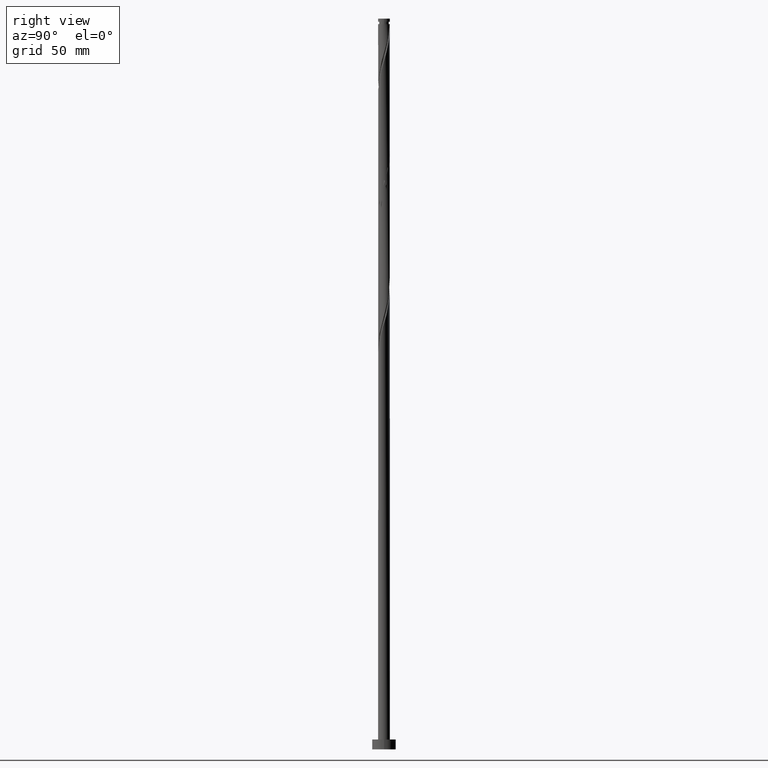
[diagram: clean part render]
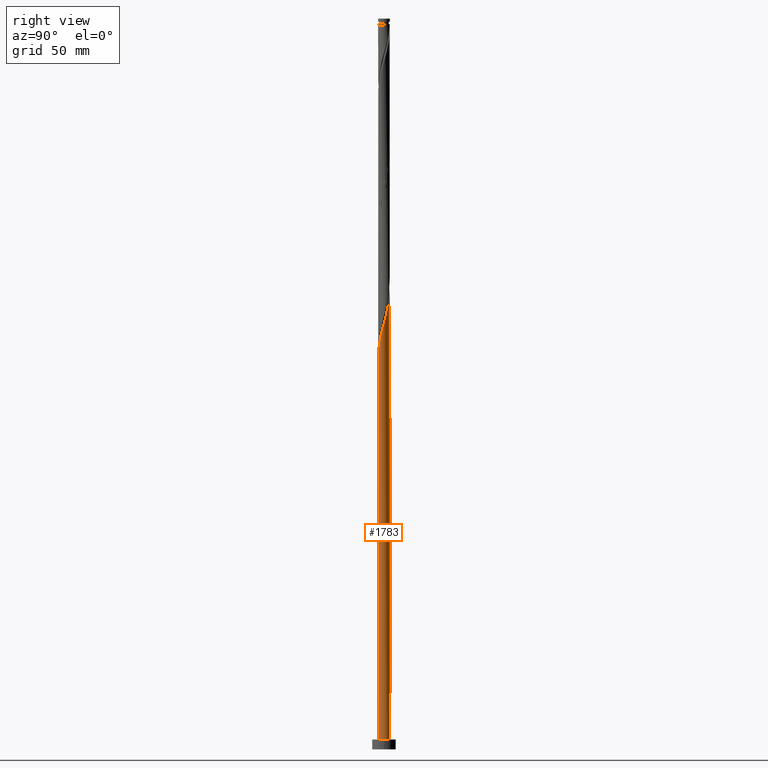
[diagram: same view with one face highlighted and labeled with its STEP entity id]
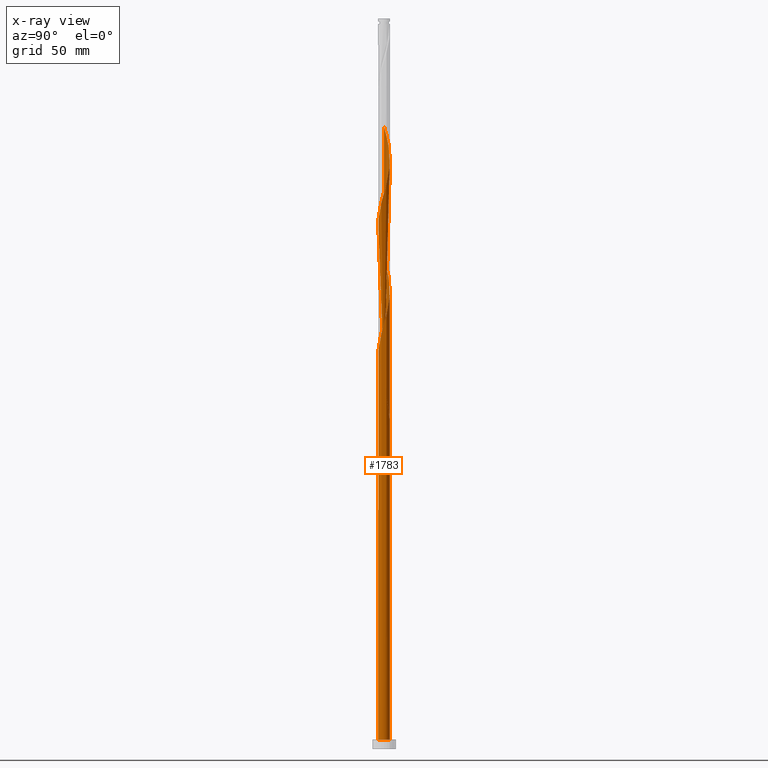
[diagram: x-ray of the same camera — body ghosted, the highlighted face saturated]
A machine part, right view. The second image highlights one B-rep face of the part: STEP entity #1783.
The next image is the same camera in x-ray: the body ghosted, the highlighted face saturated — about 0% of this face is hidden behind the body in this view.
In plain terms, the highlighted cylindrical surface (bore or boss wall) has radius 3 mm, axis along (-0, -0, -1).
Its self-contained STEP definition (entity closure, byte-faithful):
#2 = CARTESIAN_POINT ( 'NONE',  ( 2.611625341554443036, 1.476283534877588233, 287.9166993528681360 ) ) ;
#12 = CARTESIAN_POINT ( 'NONE',  ( 1.531984494871656111, 2.598546826576328961, 293.4722549084237357 ) ) ;
#20 = ORIENTED_EDGE ( 'NONE', *, *, #1636, .T. ) ;
#22 = CARTESIAN_POINT ( 'NONE',  ( 1.997955648279249319, -2.259998966802001963, 273.4722549084237926 ) ) ;
#32 = ORIENTED_EDGE ( 'NONE', *, *, #1841, .T. ) ;
#46 = CARTESIAN_POINT ( 'NONE',  ( 2.038775222402708476, 2.223244857174724309, 224.5833660195348784 ) ) ;
#54 = CARTESIAN_POINT ( 'NONE',  ( 2.611625341554443036, 1.476283534877588233, 221.2500326862015640 ) ) ;
#60 = LINE ( 'NONE', #649, #1243 ) ;
#74 = CARTESIAN_POINT ( 'NONE',  ( -1.741185482790980288, 2.443004935426444924, 172.3611437973125931 ) ) ;
#91 = CARTESIAN_POINT ( 'NONE',  ( -2.986297077045553472, -0.2864083930844384951, 250.1389215750904214 ) ) ;
#111 = CARTESIAN_POINT ( 'NONE',  ( -1.484415317302711257, 2.626010904050889216, 237.9166993528682497 ) ) ;
#123 = CARTESIAN_POINT ( 'NONE',  ( 2.744447700168710647, -1.251970017003503521, 211.2500326862014788 ) ) ;
#132 = CARTESIAN_POINT ( 'NONE',  ( -2.861491667719901599, -0.9010357570982420183, 252.3611437973126215 ) ) ;
#140 = EDGE_CURVE ( 'NONE', #1153, #1332, #876, .T. ) ;
#151 = CARTESIAN_POINT ( 'NONE',  ( 0.5969924622639753986, 2.939999999999999503, 167.9166993528682212 ) ) ;
#167 = CARTESIAN_POINT ( 'NONE',  ( 2.584311715169901991, -1.523592123514564856, 276.8055882417571070 ) ) ;
#168 = CARTESIAN_POINT ( 'NONE',  ( 3.016399812174365369, -0.02746407747455998846, 215.6944771306459643 ) ) ;
#172 = DIRECTION ( 'NONE',  ( 1.000000000000000000, 0.000000000000000000, 0.000000000000000000 ) ) ;
#175 = CARTESIAN_POINT ( 'NONE',  ( -1.785379858637181405, -2.410895841875526191, 259.0278104639792787 ) ) ;
#183 = EDGE_CURVE ( 'NONE', #1778, #1438, #477, .T. ) ;
#222 =( BOUNDED_CURVE ( )  B_SPLINE_CURVE ( 2, ( #1096, #1674, #954, #666, #74, #1251, #528, #1254, #517, #491, #938, #1107, #1800, #1660, #484 ),
 .UNSPECIFIED., .F., .T. ) 
 B_SPLINE_CURVE_WITH_KNOTS ( ( 3, 2, 2, 2, 2, 2, 2, 3 ),
 ( 0.000000000000000000, 0.008333333333333303727, 0.01666666666666671848, 0.02500000000000002220, 0.03333333333333332593, 0.04166666666666662966, 0.05000000000000004441, 0.05452860127731162104 ),
 .UNSPECIFIED. ) 
 CURVE ( )  GEOMETRIC_REPRESENTATION_ITEM ( )  RATIONAL_B_SPLINE_CURVE ( ( 0.9090909090909590207, 0.9041108139712069613, 0.9090909090909590207, 0.9041108139712069613, 0.9090909090909590207, 0.9041108139712069613, 0.9090909090909590207, 0.9041108139712069613, 0.9090909090909590207, 0.9041108139712069613, 0.9090909090909590207, 0.9041108139712069613, 0.9090909090909590207, 0.9063845652765059047, 0.9066196499552472421 ) ) 
 REPRESENTATION_ITEM ( '' )  );
#225 = FACE_OUTER_BOUND ( 'NONE', #1056, .T. ) ;
#226 = ORIENTED_EDGE ( 'NONE', *, *, #819, .F. ) ;
#229 = CARTESIAN_POINT ( 'NONE',  ( -2.844610918258240417, 0.9529893618115771181, 312.3611437973125362 ) ) ;
#237 = CARTESIAN_POINT ( 'NONE',  ( -1.785379858637177408, 2.410895841875523971, 176.8055882417569933 ) ) ;
#253 = CARTESIAN_POINT ( 'NONE',  ( 0.9582386936374934772, 2.860279830445438431, 229.0278104639793355 ) ) ;
#260 = CARTESIAN_POINT ( 'NONE',  ( -3.000000000000000888, -3.767000686007573134E-15, 186.7088092630563949 ) ) ;
#261 = CARTESIAN_POINT ( 'NONE',  ( -3.000000000000004441, -1.076285910287870657E-15, 315.7912561093466479 ) ) ;
#263 = CARTESIAN_POINT ( 'NONE',  ( 2.424175730171096443, -1.795214230025627078, 209.0278104639793071 ) ) ;
#281 = CARTESIAN_POINT ( 'NONE',  ( 2.944774136347771076, -0.6540087066196533794, 213.4722549084238210 ) ) ;
#287 = CARTESIAN_POINT ( 'NONE',  ( -3.000000000000004885, -1.076285910287870657E-15, 315.7912561093466479 ) ) ;
#292 = CARTESIAN_POINT ( 'NONE',  ( 2.211065689225172548, -2.027606598413813632, 274.5833660195348784 ) ) ;
#306 = CARTESIAN_POINT ( 'NONE',  ( 0.3426132633519648474, 2.997004880578673980, 297.9166993528683065 ) ) ;
#316 = CARTESIAN_POINT ( 'NONE',  ( -0.9059989139450642659, 2.877253563794375690, 302.3611437973125931 ) ) ;
#319 = AXIS2_PLACEMENT_3D ( 'NONE', #1242, #367, #1742 ) ;
#330 = ORIENTED_EDGE ( 'NONE', *, *, #442, .T. ) ;
#367 = DIRECTION ( 'NONE',  ( 0.000000000000000000, 0.000000000000000000, 1.000000000000000000 ) ) ;
#381 = CARTESIAN_POINT ( 'NONE',  ( -2.247618455994261133, 1.987010638188424938, 179.0278104639793071 ) ) ;
#392 = CARTESIAN_POINT ( 'NONE',  ( -2.744447700168711091, 1.251970017003503299, 311.2500326862016777 ) ) ;
#404 = CARTESIAN_POINT ( 'NONE',  ( -2.456461689585824892, -1.750776419202129786, 189.0278104639793355 ) ) ;
#405 = ORIENTED_EDGE ( 'NONE', *, *, #1841, .F. ) ;
#417 = CARTESIAN_POINT ( 'NONE',  ( -2.611625341554443036, -1.476283534877588677, 187.9166993528682212 ) ) ;
#427 = CARTESIAN_POINT ( 'NONE',  ( -1.245111594254572962, -2.729413328510883918, 261.2500326862014504 ) ) ;
#428 = CARTESIAN_POINT ( 'NONE',  ( -2.986297077045553472, -0.2864083930844384951, 183.4722549084237642 ) ) ;
#431 = CARTESIAN_POINT ( 'NONE',  ( -0.02731362638453854741, 2.999875658392149091, 170.1389215750903645 ) ) ;
#436 = CARTESIAN_POINT ( 'NONE',  ( 2.986297077045553472, 0.2864083930844368298, 283.4722549084237926 ) ) ;
#442 = EDGE_CURVE ( 'NONE', #1514, #1332, #1523, .T. ) ;
#446 = CARTESIAN_POINT ( 'NONE',  ( 1.484415317302710813, -2.626010904050889216, 271.2500326862015072 ) ) ;
#457 = CARTESIAN_POINT ( 'NONE',  ( -0.2879860105828833117, 3.002746436205633085, 300.1389215750904214 ) ) ;
#467 = DIRECTION ( 'NONE',  ( -0.000000000000000000, -0.000000000000000000, -1.000000000000000000 ) ) ;
#477 =( BOUNDED_CURVE ( )  B_SPLINE_CURVE ( 2, ( #1744, #1299, #428, #1852, #703, #1019, #417, #404, #1131, #532, #1286, #1587, #1568, #1122, #1560, #1862, #830, #1452, #1720, #543, #1003, #1873, #563, #551, #1579, #263, #855, #123, #1311, #281, #877, #168, #1060, #623, #1793, #1067, #54, #495, #1683, #46, #805, #542, #1881, #253, #1871, #1741, #720, #1413, #531, #573, #852, #111, #1850, #1450, #971, #984, #839, #702, #1422, #1549, #1296, #1141, #91, #561, #132, #680, #1558, #1717, #1214, #1595, #175, #1491, #427, #755, #1468, #901, #1050, #1336, #1634, #1479, #911, #446, #611, #22, #292, #602, #167, #765, #1616, #583, #1190, #739, #436, #1018, #875, #1318, #2, #1172, #1754, #1326, #1027, #12, #591, #1038, #1773, #306, #893, #457, #1623, #316, #1201, #1781, #1370, #665, #1547, #990, #849, #392, #229, #1437, #1294, #1585, #261 ),
 .UNSPECIFIED., .F., .T. ) 
 B_SPLINE_CURVE_WITH_KNOTS ( ( 3, 2, 2, 2, 2, 2, 2, 2, 2, 2, 2, 2, 2, 2, 2, 2, 2, 2, 2, 2, 2, 2, 2, 2, 2, 2, 2, 2, 2, 2, 2, 2, 2, 2, 2, 2, 2, 2, 2, 2, 2, 2, 2, 2, 2, 2, 2, 2, 2, 2, 2, 2, 2, 2, 2, 2, 2, 2, 2, 2, 2, 3 ),
 ( 0.05452860127731162104, 0.05833333333333334814, 0.06666666666666665186, 0.07499999999999995559, 0.08333333333333337034, 0.09166666666666667407, 0.09999999999999997780, 0.1083333333333332815, 0.1166666666666666963, 0.1250000000000000000, 0.1333333333333333037, 0.1416666666666667185, 0.1500000000000000222, 0.1583333333333333259, 0.1666666666666666297, 0.1750000000000000444, 0.1833333333333333481, 0.1916666666666666519, 0.1999999999999999556, 0.2083333333333333703, 0.2166666666666666741, 0.2249999999999999778, 0.2333333333333332815, 0.2416666666666666963, 0.2500000000000000000, 0.2583333333333333037, 0.2666666666666667185, 0.2750000000000000222, 0.2833333333333333259, 0.2916666666666666297, 0.3000000000000000444, 0.3083333333333333481, 0.3166666666666666519, 0.3249999999999999556, 0.3333333333333333703, 0.3416666666666666741, 0.3499999999999999778, 0.3583333333333332815, 0.3666666666666666963, 0.3750000000000000000, 0.3833333333333333037, 0.3916666666666667185, 0.4000000000000000222, 0.4083333333333333259, 0.4166666666666666297, 0.4250000000000000444, 0.4333333333333333481, 0.4416666666666666519, 0.4499999999999999556, 0.4583333333333333703, 0.4666666666666666741, 0.4749999999999999778, 0.4833333333333332815, 0.4916666666666666963, 0.5000000000000000000, 0.5083333333333333037, 0.5166666666666666075, 0.5250000000000000222, 0.5333333333333333259, 0.5416666666666667407, 0.5500000000000000444, 0.5545286012773110729 ),
 .UNSPECIFIED. ) 
 CURVE ( )  GEOMETRIC_REPRESENTATION_ITEM ( )  RATIONAL_B_SPLINE_CURVE ( ( 0.9066196499552472421, 0.9068171577856600774, 0.9090909090909590207, 0.9041108139712069613, 0.9090909090909590207, 0.9041108139712069613, 0.9090909090909590207, 0.9041108139712069613, 0.9090909090909590207, 0.9041108139712069613, 0.9090909090909590207, 0.9041108139712069613, 0.9090909090909590207, 0.9041108139712069613, 0.9090909090909590207, 0.9041108139712069613, 0.9090909090909590207, 0.9041108139712069613, 0.9090909090909590207, 0.9041108139712069613, 0.9090909090909590207, 0.9041108139712069613, 0.9090909090909590207, 0.9041108139712069613, 0.9090909090909590207, 0.9041108139712069613, 0.9090909090909590207, 0.9041108139712069613, 0.9090909090909590207, 0.9041108139712069613, 0.9090909090909590207, 0.9041108139712069613, 0.9090909090909590207, 0.9041108139712069613, 0.9090909090909590207, 0.9041108139712069613, 0.9090909090909590207, 0.9041108139712069613, 0.9090909090909590207, 0.9041108139712069613, 0.9090909090909590207, 0.9041108139712069613, 0.9090909090909590207, 0.9041108139712069613, 0.9090909090909590207, 0.9041108139712069613, 0.9090909090909590207, 0.9041108139712069613, 0.9090909090909590207, 0.9041108139712069613, 0.9090909090909590207, 0.9041108139712069613, 0.9090909090909590207, 0.9041108139712069613, 0.9090909090909590207, 0.9041108139712069613, 0.9090909090909590207, 0.9041108139712069613, 0.9090909090909590207, 0.9041108139712069613, 0.9090909090909590207, 0.9041108139712069613, 0.9090909090909590207, 0.9041108139712069613, 0.9090909090909590207, 0.9041108139712069613, 0.9090909090909590207, 0.9041108139712069613, 0.9090909090909590207, 0.9041108139712069613, 0.9090909090909590207, 0.9041108139712069613, 0.9090909090909590207, 0.9041108139712069613, 0.9090909090909590207, 0.9041108139712069613, 0.9090909090909590207, 0.9041108139712069613, 0.9090909090909590207, 0.9041108139712069613, 0.9090909090909590207, 0.9041108139712069613, 0.9090909090909590207, 0.9041108139712069613, 0.9090909090909590207, 0.9041108139712069613, 0.9090909090909590207, 0.9041108139712069613, 0.9090909090909590207, 0.9041108139712069613, 0.9090909090909590207, 0.9041108139712069613, 0.9090909090909590207, 0.9041108139712069613, 0.9090909090909590207, 0.9041108139712069613, 0.9090909090909590207, 0.9041108139712069613, 0.9090909090909590207, 0.9041108139712069613, 0.9090909090909590207, 0.9041108139712069613, 0.9090909090909590207, 0.9041108139712069613, 0.9090909090909590207, 0.9041108139712069613, 0.9090909090909590207, 0.9041108139712069613, 0.9090909090909590207, 0.9041108139712069613, 0.9090909090909590207, 0.9041108139712069613, 0.9090909090909590207, 0.9041108139712069613, 0.9090909090909590207, 0.9041108139712069613, 0.9090909090909590207, 0.9041108139712069613, 0.9090909090909590207, 0.9041108139712069613, 0.9090909090909590207, 0.9063845652765062377, 0.9066196499552472421 ) ) 
 REPRESENTATION_ITEM ( '' )  );
#484 = CARTESIAN_POINT ( 'NONE',  ( -3.000000000000004441, -3.318548223387602014E-15, 182.4579227760134188 ) ) ;
#486 = ORIENTED_EDGE ( 'NONE', *, *, #140, .F. ) ;
#489 = EDGE_CURVE ( 'NONE', #1514, #1778, #222, .T. ) ;
#491 = CARTESIAN_POINT ( 'NONE',  ( -2.744447700168711091, 1.251970017003503299, 177.9166993528682212 ) ) ;
#495 = CARTESIAN_POINT ( 'NONE',  ( 2.456461689585825336, 1.750776419202128453, 222.3611437973127067 ) ) ;
#500 = CARTESIAN_POINT ( 'NONE',  ( -3.000000000000004885, -3.318548223387602014E-15, 182.4579227760134188 ) ) ;
#516 = ORIENTED_EDGE ( 'NONE', *, *, #183, .F. ) ;
#517 = CARTESIAN_POINT ( 'NONE',  ( -2.584311715169902879, 1.523592123514564189, 176.8055882417570501 ) ) ;
#528 = CARTESIAN_POINT ( 'NONE',  ( -2.211065689225173436, 2.027606598413813632, 174.5833660195348500 ) ) ;
#531 = CARTESIAN_POINT ( 'NONE',  ( -0.5969924622639743994, 2.940000000000002611, 234.5833660195348500 ) ) ;
#532 = CARTESIAN_POINT ( 'NONE',  ( -2.038775222402708032, -2.223244857174724753, 191.2500326862015356 ) ) ;
#542 = CARTESIAN_POINT ( 'NONE',  ( 1.531984494871656111, 2.598546826576328961, 226.8055882417570785 ) ) ;
#543 = CARTESIAN_POINT ( 'NONE',  ( 0.9059989139450632667, -2.877253563794377467, 202.3611437973126215 ) ) ;
#546 = CARTESIAN_POINT ( 'NONE',  ( -2.861491667719896714, 0.9010357570982420183, 183.4722549084237357 ) ) ;
#551 = CARTESIAN_POINT ( 'NONE',  ( 1.997955648279249319, -2.259998966802001963, 206.8055882417570785 ) ) ;
#561 = CARTESIAN_POINT ( 'NONE',  ( -2.956194341916741575, -0.6002808636434369127, 251.2500326862015356 ) ) ;
#563 = CARTESIAN_POINT ( 'NONE',  ( 1.741185482790979622, -2.443004935426445812, 205.6944771306459643 ) ) ;
#567 = CARTESIAN_POINT ( 'NONE',  ( -2.986297077045549031, 0.2864083930844396053, 185.6944771306459074 ) ) ;
#573 = CARTESIAN_POINT ( 'NONE',  ( -0.9059989139450642659, 2.877253563794375690, 235.6944771306460495 ) ) ;
#583 = CARTESIAN_POINT ( 'NONE',  ( 2.944774136347771076, -0.6540087066196533794, 280.1389215750905350 ) ) ;
#589 = VERTEX_POINT ( 'NONE', #859 ) ;
#591 = CARTESIAN_POINT ( 'NONE',  ( 1.245111594254573628, 2.729413328510883918, 294.5833660195347079 ) ) ;
#596 = CARTESIAN_POINT ( 'NONE',  ( -0.9582386936374900355, 2.860279830445433547, 173.4722549084236789 ) ) ;
#602 = CARTESIAN_POINT ( 'NONE',  ( 2.424175730171096443, -1.795214230025627078, 275.6944771306458506 ) ) ;
#611 = CARTESIAN_POINT ( 'NONE',  ( 1.741185482790979622, -2.443004935426445812, 272.3611437973125931 ) ) ;
#623 = CARTESIAN_POINT ( 'NONE',  ( 2.956194341916741575, 0.6002808636434365797, 217.9166993528682212 ) ) ;
#649 = CARTESIAN_POINT ( 'NONE',  ( -3.000000000000000444, 0.000000000000000000, 370.6999999999999886 ) ) ;
#655 = CARTESIAN_POINT ( 'NONE',  ( 0.000000000000000000, 0.000000000000000000, 167.9166993528681928 ) ) ;
#665 = CARTESIAN_POINT ( 'NONE',  ( -1.997955648279250429, 2.259998966802001519, 306.8055882417569933 ) ) ;
#666 = CARTESIAN_POINT ( 'NONE',  ( -1.484415317302711257, 2.626010904050889216, 171.2500326862015356 ) ) ;
#674 = DIRECTION ( 'NONE',  ( -0.000000000000000000, -0.000000000000000000, -1.000000000000000000 ) ) ;
#680 = CARTESIAN_POINT ( 'NONE',  ( -2.766788993523062068, -1.201790650553047346, 253.4722549084237357 ) ) ;
#687 = CARTESIAN_POINT ( 'NONE',  ( -1.531984494871651448, 2.598546826576326296, 175.6944771306459643 ) ) ;
#700 = AXIS2_PLACEMENT_3D ( 'NONE', #655, #796, #1374 ) ;
#702 = CARTESIAN_POINT ( 'NONE',  ( -2.744447700168711091, 1.251970017003503299, 244.5833660195349353 ) ) ;
#703 = CARTESIAN_POINT ( 'NONE',  ( -2.861491667719901599, -0.9010357570982420183, 185.6944771306459074 ) ) ;
#713 = CARTESIAN_POINT ( 'NONE',  ( -2.611625341554438595, 1.476283534877586456, 181.2500326862014788 ) ) ;
#720 = CARTESIAN_POINT ( 'NONE',  ( 0.02731362638454072275, 2.999875658392153088, 232.3611437973126215 ) ) ;
#730 = EDGE_CURVE ( 'NONE', #589, #1094, #1823, .T. ) ;
#737 = ORIENTED_EDGE ( 'NONE', *, *, #730, .T. ) ;
#739 = CARTESIAN_POINT ( 'NONE',  ( 3.016399812174365369, -0.02746407747455998846, 282.3611437973126499 ) ) ;
#755 = CARTESIAN_POINT ( 'NONE',  ( -0.9582386936374930331, -2.860279830445438431, 262.3611437973126499 ) ) ;
#765 = CARTESIAN_POINT ( 'NONE',  ( 2.744447700168710647, -1.251970017003503521, 277.9166993528683065 ) ) ;
#796 = DIRECTION ( 'NONE',  ( 0.000000000000000000, -0.000000000000000000, -1.000000000000000000 ) ) ;
#805 = CARTESIAN_POINT ( 'NONE',  ( 1.785379858637181849, 2.410895841875527079, 225.6944771306458790 ) ) ;
#819 = EDGE_CURVE ( 'NONE', #1438, #1153, #1066, .T. ) ;
#830 = CARTESIAN_POINT ( 'NONE',  ( -0.02731362638454028907, -2.999875658392153088, 199.0278104639793071 ) ) ;
#839 = CARTESIAN_POINT ( 'NONE',  ( -2.584311715169902879, 1.523592123514564189, 243.4722549084237357 ) ) ;
#849 = CARTESIAN_POINT ( 'NONE',  ( -2.584311715169902879, 1.523592123514564189, 310.1389215750904782 ) ) ;
#852 = CARTESIAN_POINT ( 'NONE',  ( -1.195207115623887262, 2.751632233922632231, 236.8055882417571070 ) ) ;
#855 = CARTESIAN_POINT ( 'NONE',  ( 2.584311715169901991, -1.523592123514564856, 210.1389215750903929 ) ) ;
#859 = CARTESIAN_POINT ( 'NONE',  ( 3.000000000000000444, 0.000000000000000000, 5.000000000000000000 ) ) ;
#875 = CARTESIAN_POINT ( 'NONE',  ( 2.861491667719901599, 0.9010357570982411302, 285.6944771306459643 ) ) ;
#876 =( BOUNDED_CURVE ( )  B_SPLINE_CURVE ( 2, ( #1291, #1116, #567, #1867, #546, #1445, #713, #1303, #381, #977, #237, #687, #1758, #596, #887, #1472, #431, #1022, #151 ),
 .UNSPECIFIED., .F., .T. ) 
 B_SPLINE_CURVE_WITH_KNOTS ( ( 3, 2, 2, 2, 2, 2, 2, 2, 2, 3 ),
 ( 0.9295286012773114059, 0.9333333333333333481, 0.9416666666666666519, 0.9499999999999999556, 0.9583333333333333703, 0.9666666666666666741, 0.9749999999999999778, 0.9833333333333332815, 0.9916666666666666963, 1.000000000000000000 ),
 .UNSPECIFIED. ) 
 CURVE ( )  GEOMETRIC_REPRESENTATION_ITEM ( )  RATIONAL_B_SPLINE_CURVE ( ( 0.9066196499552411359, 0.9068171577856538601, 0.9090909090909528034, 0.9041108139712010772, 0.9090909090909528034, 0.9041108139712010772, 0.9090909090909528034, 0.9041108139712010772, 0.9090909090909528034, 0.9041108139712010772, 0.9090909090909528034, 0.9041108139712010772, 0.9090909090909528034, 0.9041108139712010772, 0.9090909090909528034, 0.9041108139712010772, 0.9090909090909528034, 0.9041108139712010772, 0.9090909090909528034 ) ) 
 REPRESENTATION_ITEM ( '' )  );
#877 = CARTESIAN_POINT ( 'NONE',  ( 2.980586974261067557, -0.3407363920471049856, 214.5833660195348500 ) ) ;
#887 = CARTESIAN_POINT ( 'NONE',  ( -0.6504259784947266088, 2.928642355512051765, 172.3611437973125931 ) ) ;
#893 = CARTESIAN_POINT ( 'NONE',  ( 0.02731362638454072275, 2.999875658392153088, 299.0278104639792787 ) ) ;
#901 = CARTESIAN_POINT ( 'NONE',  ( -0.3426132633519643478, -2.997004880578673980, 264.5833660195348784 ) ) ;
#911 = CARTESIAN_POINT ( 'NONE',  ( 1.195207115623886374, -2.751632233922632231, 270.1389215750903645 ) ) ;
#924 = CARTESIAN_POINT ( 'NONE',  ( -0.5969924622639740663, 2.940000000000002611, 167.9166993528681928 ) ) ;
#938 = CARTESIAN_POINT ( 'NONE',  ( -2.844610918258240417, 0.9529893618115771181, 179.0278104639793071 ) ) ;
#954 = CARTESIAN_POINT ( 'NONE',  ( -1.195207115623887262, 2.751632233922632231, 170.1389215750904214 ) ) ;
#971 = CARTESIAN_POINT ( 'NONE',  ( -2.211065689225173436, 2.027606598413813632, 241.2500326862014788 ) ) ;
#975 = DIRECTION ( 'NONE',  ( -0.000000000000000000, -0.000000000000000000, -1.000000000000000000 ) ) ;
#977 = CARTESIAN_POINT ( 'NONE',  ( -2.038775222402704035, 2.223244857174722089, 177.9166993528681360 ) ) ;
#984 = CARTESIAN_POINT ( 'NONE',  ( -2.424175730171097332, 1.795214230025626190, 242.3611437973126215 ) ) ;
#990 = CARTESIAN_POINT ( 'NONE',  ( -2.424175730171097332, 1.795214230025626190, 309.0278104639794492 ) ) ;
#1000 = CARTESIAN_POINT ( 'NONE',  ( -3.000000000000000444, 0.000000000000000000, 5.000000000000000000 ) ) ;
#1003 = CARTESIAN_POINT ( 'NONE',  ( 1.195207115623886374, -2.751632233922632231, 203.4722549084237642 ) ) ;
#1018 = CARTESIAN_POINT ( 'NONE',  ( 2.956194341916741575, 0.6002808636434365797, 284.5833660195349353 ) ) ;
#1019 = CARTESIAN_POINT ( 'NONE',  ( -2.766788993523062068, -1.201790650553047346, 186.8055882417570501 ) ) ;
#1022 = CARTESIAN_POINT ( 'NONE',  ( 0.2879860105828857542, 3.002746436205628200, 169.0278104639793071 ) ) ;
#1027 = CARTESIAN_POINT ( 'NONE',  ( 1.785379858637181849, 2.410895841875527079, 292.3611437973127067 ) ) ;
#1038 = CARTESIAN_POINT ( 'NONE',  ( 0.9582386936374934772, 2.860279830445438431, 295.6944771306459643 ) ) ;
#1050 = CARTESIAN_POINT ( 'NONE',  ( -0.02731362638454028907, -2.999875658392153088, 265.6944771306459643 ) ) ;
#1056 = EDGE_LOOP ( 'NONE', ( #226, #516, #32, #20, #737, #405, #1691, #330, #486 ) ) ;
#1060 = CARTESIAN_POINT ( 'NONE',  ( 2.986297077045553472, 0.2864083930844368298, 216.8055882417571070 ) ) ;
#1066 = LINE ( 'NONE', #1371, #1241 ) ;
#1067 = CARTESIAN_POINT ( 'NONE',  ( 2.766788993523062068, 1.201790650553045570, 220.1389215750904498 ) ) ;
#1094 = VERTEX_POINT ( 'NONE', #1000 ) ;
#1096 = CARTESIAN_POINT ( 'NONE',  ( -0.5969924622639740663, 2.940000000000002611, 167.9166993528682212 ) ) ;
#1107 = CARTESIAN_POINT ( 'NONE',  ( -2.944774136347771964, 0.6540087066196513810, 180.1389215750904782 ) ) ;
#1116 = CARTESIAN_POINT ( 'NONE',  ( -3.000000000000000888, 0.1435319978602475344, 186.2002607374923571 ) ) ;
#1122 = CARTESIAN_POINT ( 'NONE',  ( -0.9582386936374930331, -2.860279830445438431, 195.6944771306459927 ) ) ;
#1131 = CARTESIAN_POINT ( 'NONE',  ( -2.247618455994266018, -1.987010638188426492, 190.1389215750903645 ) ) ;
#1141 = CARTESIAN_POINT ( 'NONE',  ( -3.016399812174365369, 0.02746407747455903436, 249.0278104639793071 ) ) ;
#1153 = VERTEX_POINT ( 'NONE', #260 ) ;
#1172 = CARTESIAN_POINT ( 'NONE',  ( 2.456461689585825336, 1.750776419202128453, 289.0278104639792787 ) ) ;
#1190 = CARTESIAN_POINT ( 'NONE',  ( 2.980586974261067557, -0.3407363920471049856, 281.2500326862015072 ) ) ;
#1201 = CARTESIAN_POINT ( 'NONE',  ( -1.195207115623887262, 2.751632233922632231, 303.4722549084236789 ) ) ;
#1214 = CARTESIAN_POINT ( 'NONE',  ( -2.247618455994266018, -1.987010638188426492, 256.8055882417571070 ) ) ;
#1241 = VECTOR ( 'NONE', #467, 1000.000000000000000 ) ;
#1242 = CARTESIAN_POINT ( 'NONE',  ( 0.000000000000000000, 0.000000000000000000, 5.000000000000000000 ) ) ;
#1243 = VECTOR ( 'NONE', #674, 1000.000000000000000 ) ;
#1251 = CARTESIAN_POINT ( 'NONE',  ( -1.997955648279250429, 2.259998966802001519, 173.4722549084237357 ) ) ;
#1254 = CARTESIAN_POINT ( 'NONE',  ( -2.424175730171097332, 1.795214230025626190, 175.6944771306459927 ) ) ;
#1286 = CARTESIAN_POINT ( 'NONE',  ( -1.785379858637181405, -2.410895841875526191, 192.3611437973126499 ) ) ;
#1291 = CARTESIAN_POINT ( 'NONE',  ( -3.000000000000000888, -3.767000686007573134E-15, 186.7088092630563949 ) ) ;
#1294 = CARTESIAN_POINT ( 'NONE',  ( -2.980586974261067557, 0.3407363920471046526, 314.5833660195348216 ) ) ;
#1296 = CARTESIAN_POINT ( 'NONE',  ( -2.980586974261067557, 0.3407363920471046526, 247.9166993528681644 ) ) ;
#1299 = CARTESIAN_POINT ( 'NONE',  ( -3.000000000000003997, -0.1435319978602544455, 182.9664713015774566 ) ) ;
#1303 = CARTESIAN_POINT ( 'NONE',  ( -2.456461689585820007, 1.750776419202127343, 180.1389215750904214 ) ) ;
#1311 = CARTESIAN_POINT ( 'NONE',  ( 2.844610918258240417, -0.9529893618115782283, 212.3611437973126499 ) ) ;
#1318 = CARTESIAN_POINT ( 'NONE',  ( 2.766788993523062068, 1.201790650553045570, 286.8055882417571638 ) ) ;
#1326 = CARTESIAN_POINT ( 'NONE',  ( 2.038775222402708476, 2.223244857174724309, 291.2500326862015072 ) ) ;
#1332 = VERTEX_POINT ( 'NONE', #1602 ) ;
#1336 = CARTESIAN_POINT ( 'NONE',  ( 0.2879860105828849770, -3.002746436205633085, 266.8055882417571638 ) ) ;
#1370 = CARTESIAN_POINT ( 'NONE',  ( -1.741185482790980288, 2.443004935426444924, 305.6944771306458506 ) ) ;
#1371 = CARTESIAN_POINT ( 'NONE',  ( -3.000000000000000444, 0.000000000000000000, 370.6999999999999886 ) ) ;
#1374 = DIRECTION ( 'NONE',  ( -1.000000000000000000, 0.000000000000000000, 0.000000000000000000 ) ) ;
#1413 = CARTESIAN_POINT ( 'NONE',  ( -0.2879860105828833117, 3.002746436205633085, 233.4722549084237642 ) ) ;
#1422 = CARTESIAN_POINT ( 'NONE',  ( -2.844610918258240417, 0.9529893618115771181, 245.6944771306459927 ) ) ;
#1437 = CARTESIAN_POINT ( 'NONE',  ( -2.944774136347771964, 0.6540087066196513810, 313.4722549084237357 ) ) ;
#1438 = VERTEX_POINT ( 'NONE', #287 ) ;
#1445 = CARTESIAN_POINT ( 'NONE',  ( -2.766788993523056295, 1.201790650553046902, 182.3611437973126215 ) ) ;
#1450 = CARTESIAN_POINT ( 'NONE',  ( -1.997955648279250429, 2.259998966802001519, 240.1389215750904214 ) ) ;
#1452 = CARTESIAN_POINT ( 'NONE',  ( 0.2879860105828849770, -3.002746436205633085, 200.1389215750904214 ) ) ;
#1468 = CARTESIAN_POINT ( 'NONE',  ( -0.6504259784947286072, -2.928642355512055762, 263.4722549084237357 ) ) ;
#1472 = CARTESIAN_POINT ( 'NONE',  ( -0.3426132633519631820, 2.997004880578669983, 171.2500326862015356 ) ) ;
#1479 = CARTESIAN_POINT ( 'NONE',  ( 0.9059989139450632667, -2.877253563794377467, 269.0278104639792787 ) ) ;
#1490 = AXIS2_PLACEMENT_3D ( 'NONE', #1613, #1630, #172 ) ;
#1491 = CARTESIAN_POINT ( 'NONE',  ( -1.531984494871654556, -2.598546826576329849, 260.1389215750904782 ) ) ;
#1514 = VERTEX_POINT ( 'NONE', #924 ) ;
#1523 = CIRCLE ( 'NONE', #700, 3.000000000000000444 ) ;
#1528 = CARTESIAN_POINT ( 'NONE',  ( 0.000000000000000000, 0.000000000000000000, 370.6999999999999886 ) ) ;
#1544 = DIRECTION ( 'NONE',  ( -1.000000000000000000, 0.000000000000000000, 0.000000000000000000 ) ) ;
#1547 = CARTESIAN_POINT ( 'NONE',  ( -2.211065689225173436, 2.027606598413813632, 307.9166993528682497 ) ) ;
#1549 = CARTESIAN_POINT ( 'NONE',  ( -2.944774136347771964, 0.6540087066196513810, 246.8055882417571070 ) ) ;
#1558 = CARTESIAN_POINT ( 'NONE',  ( -2.611625341554443036, -1.476283534877588677, 254.5833660195347932 ) ) ;
#1560 = CARTESIAN_POINT ( 'NONE',  ( -0.6504259784947286072, -2.928642355512055762, 196.8055882417570501 ) ) ;
#1568 = CARTESIAN_POINT ( 'NONE',  ( -1.245111594254572962, -2.729413328510883918, 194.5833660195348500 ) ) ;
#1572 = AXIS2_PLACEMENT_3D ( 'NONE', #1528, #975, #1544 ) ;
#1579 = CARTESIAN_POINT ( 'NONE',  ( 2.211065689225172548, -2.027606598413813632, 207.9166993528681928 ) ) ;
#1585 = CARTESIAN_POINT ( 'NONE',  ( -3.000000000000003109, 0.1709212123393130389, 315.1856647999621259 ) ) ;
#1587 = CARTESIAN_POINT ( 'NONE',  ( -1.531984494871654556, -2.598546826576329849, 193.4722549084237642 ) ) ;
#1595 = CARTESIAN_POINT ( 'NONE',  ( -2.038775222402708032, -2.223244857174724753, 257.9166993528681928 ) ) ;
#1602 = CARTESIAN_POINT ( 'NONE',  ( 0.5969924622639752876, 2.939999999999999503, 167.9166993528681928 ) ) ;
#1613 = CARTESIAN_POINT ( 'NONE',  ( 0.000000000000000000, 0.000000000000000000, 5.000000000000000000 ) ) ;
#1616 = CARTESIAN_POINT ( 'NONE',  ( 2.844610918258240417, -0.9529893618115782283, 279.0278104639792218 ) ) ;
#1623 = CARTESIAN_POINT ( 'NONE',  ( -0.5969924622639743994, 2.940000000000002611, 301.2500326862016777 ) ) ;
#1630 = DIRECTION ( 'NONE',  ( 0.000000000000000000, 0.000000000000000000, 1.000000000000000000 ) ) ;
#1634 = CARTESIAN_POINT ( 'NONE',  ( 0.5969924622639747325, -2.940000000000002611, 267.9166993528681928 ) ) ;
#1636 = EDGE_CURVE ( 'NONE', #1094, #589, #1693, .T. ) ;
#1660 = CARTESIAN_POINT ( 'NONE',  ( -3.000000000000005329, 0.1709212123392923333, 181.8523314666288115 ) ) ;
#1674 = CARTESIAN_POINT ( 'NONE',  ( -0.9059989139450642659, 2.877253563794375690, 169.0278104639793355 ) ) ;
#1683 = CARTESIAN_POINT ( 'NONE',  ( 2.247618455994267350, 1.987010638188425604, 223.4722549084237073 ) ) ;
#1691 = ORIENTED_EDGE ( 'NONE', *, *, #489, .F. ) ;
#1693 = CIRCLE ( 'NONE', #1490, 3.000000000000000444 ) ;
#1717 = CARTESIAN_POINT ( 'NONE',  ( -2.456461689585824892, -1.750776419202129786, 255.6944771306459643 ) ) ;
#1720 = CARTESIAN_POINT ( 'NONE',  ( 0.5969924622639747325, -2.940000000000002611, 201.2500326862015072 ) ) ;
#1741 = CARTESIAN_POINT ( 'NONE',  ( 0.3426132633519648474, 2.997004880578673980, 231.2500326862015640 ) ) ;
#1742 = DIRECTION ( 'NONE',  ( 1.000000000000000000, 0.000000000000000000, 0.000000000000000000 ) ) ;
#1744 = CARTESIAN_POINT ( 'NONE',  ( -3.000000000000004441, -3.318548223387602014E-15, 182.4579227760134188 ) ) ;
#1754 = CARTESIAN_POINT ( 'NONE',  ( 2.247618455994267350, 1.987010638188425604, 290.1389215750904214 ) ) ;
#1758 = CARTESIAN_POINT ( 'NONE',  ( -1.245111594254570742, 2.729413328510879921, 174.5833660195348500 ) ) ;
#1773 = CARTESIAN_POINT ( 'NONE',  ( 0.6504259784947306056, 2.928642355512054873, 296.8055882417570501 ) ) ;
#1778 = VERTEX_POINT ( 'NONE', #500 ) ;
#1781 = CARTESIAN_POINT ( 'NONE',  ( -1.484415317302711257, 2.626010904050889216, 304.5833660195349921 ) ) ;
#1783 = ADVANCED_FACE ( 'NONE', ( #225 ), #1819, .T. ) ;
#1793 = CARTESIAN_POINT ( 'NONE',  ( 2.861491667719901599, 0.9010357570982411302, 219.0278104639792502 ) ) ;
#1800 = CARTESIAN_POINT ( 'NONE',  ( -2.980586974261067557, 0.3407363920471046526, 181.2500326862015072 ) ) ;
#1819 = CYLINDRICAL_SURFACE ( 'NONE', #1572, 3.000000000000000444 ) ;
#1823 = CIRCLE ( 'NONE', #319, 3.000000000000000444 ) ;
#1841 = EDGE_CURVE ( 'NONE', #1778, #1094, #60, .T. ) ;
#1850 = CARTESIAN_POINT ( 'NONE',  ( -1.741185482790980288, 2.443004935426444924, 239.0278104639792787 ) ) ;
#1852 = CARTESIAN_POINT ( 'NONE',  ( -2.956194341916741575, -0.6002808636434369127, 184.5833660195348784 ) ) ;
#1862 = CARTESIAN_POINT ( 'NONE',  ( -0.3426132633519643478, -2.997004880578673980, 197.9166993528682212 ) ) ;
#1867 = CARTESIAN_POINT ( 'NONE',  ( -2.956194341916736690, 0.6002808636434365797, 184.5833660195348500 ) ) ;
#1871 = CARTESIAN_POINT ( 'NONE',  ( 0.6504259784947306056, 2.928642355512054873, 230.1389215750903929 ) ) ;
#1873 = CARTESIAN_POINT ( 'NONE',  ( 1.484415317302710813, -2.626010904050889216, 204.5833660195348784 ) ) ;
#1881 = CARTESIAN_POINT ( 'NONE',  ( 1.245111594254573628, 2.729413328510883918, 227.9166993528681928 ) ) ;